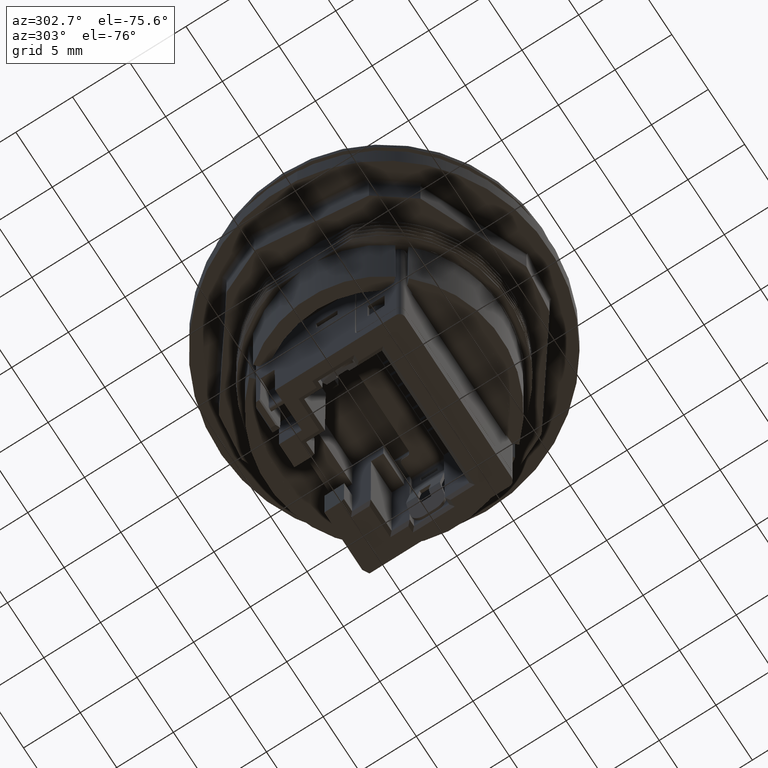
[diagram: clean part render]
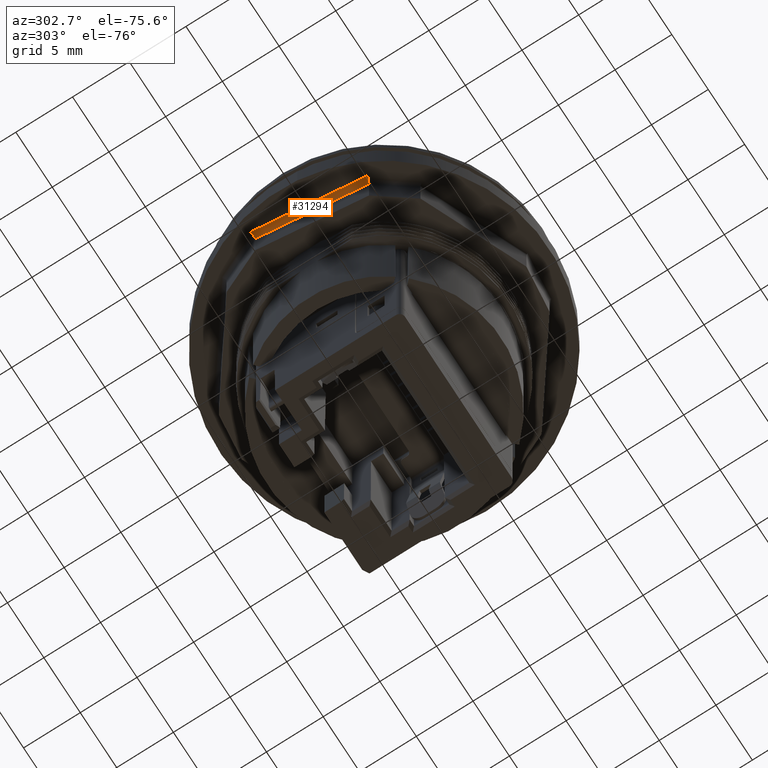
[diagram: same view with one face highlighted and labeled with its STEP entity id]
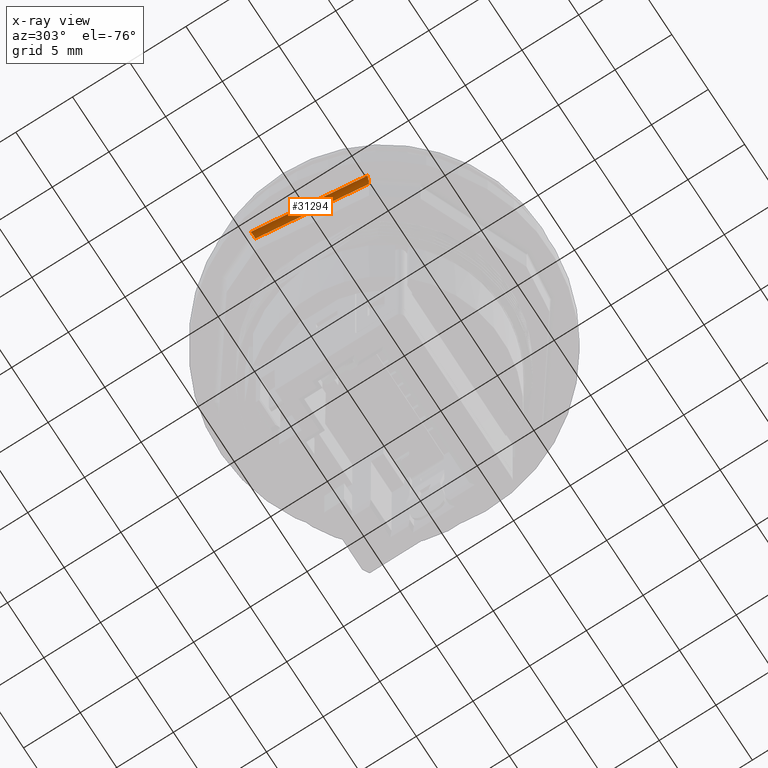
[diagram: x-ray of the same camera — body ghosted, the highlighted face saturated]
A machine part, auxiliary view. The second image highlights one B-rep face of the part: STEP entity #31294.
The next image is the same camera in x-ray: the body ghosted, the highlighted face saturated — about 0% of this face is hidden behind the body in this view.
In plain terms, the highlighted cylindrical surface (edge-blend (fillet) strip) has radius 0.5 mm, axis along (-0.109, 0.994, 0).
Its self-contained STEP definition (entity closure, byte-faithful):
#336=ELLIPSE('',#32900,0.0517638090205041,0.05);
#346=ELLIPSE('',#32920,0.0517638090205041,0.05);
#602=CYLINDRICAL_SURFACE('',#32921,0.05);
#1867=FACE_OUTER_BOUND('',#3441,.T.);
#3441=EDGE_LOOP('',(#19464,#19465,#19466,#19467));
#5092=LINE('',#43972,#8441);
#5093=LINE('',#43973,#8442);
#8441=VECTOR('',#35561,1.);
#8442=VECTOR('',#35562,1.);
#11771=VERTEX_POINT('',#43903);
#11774=VERTEX_POINT('',#43908);
#11793=VERTEX_POINT('',#43966);
#11794=VERTEX_POINT('',#43968);
#14766=EDGE_CURVE('',#11771,#11774,#336,.T.);
#14795=EDGE_CURVE('',#11793,#11794,#346,.T.);
#14797=EDGE_CURVE('',#11793,#11771,#5092,.T.);
#14798=EDGE_CURVE('',#11774,#11794,#5093,.T.);
#19464=ORIENTED_EDGE('',*,*,#14797,.T.);
#19465=ORIENTED_EDGE('',*,*,#14766,.T.);
#19466=ORIENTED_EDGE('',*,*,#14798,.T.);
#19467=ORIENTED_EDGE('',*,*,#14795,.F.);
#31294=ADVANCED_FACE('',(#1867),#602,.F.);
#32900=AXIS2_PLACEMENT_3D('',#43910,#35497,#35498);
#32920=AXIS2_PLACEMENT_3D('',#43969,#35556,#35557);
#32921=AXIS2_PLACEMENT_3D('',#43971,#35559,#35560);
#35497=DIRECTION('center_axis',(0.152009967343776,0.988378960636124,-9.03799265409492E-16));
#35498=DIRECTION('ref_axis',(0.988378960636124,-0.152009967343776,-3.58152027374413E-15));
#35556=DIRECTION('center_axis',(-0.362544986969913,0.93196627214883,-1.1367391717467E-15));
#35557=DIRECTION('ref_axis',(0.931966272148829,0.362544986969913,-3.55358717393619E-15));
#35559=DIRECTION('center_axis',(-0.10898094548055,0.99404383883316,5.39626050256443E-17));
#35560=DIRECTION('ref_axis',(0.702895139235637,0.0770611655694185,0.707106781186545));
#35561=DIRECTION('',(-0.10898094548055,0.99404383883316,5.39626050256443E-17));
#35562=DIRECTION('',(0.10898094548055,-0.99404383883316,-5.39626050256443E-17));
#43903=CARTESIAN_POINT('',(-1.2954036357784,0.345821948794884,0.25));
#43908=CARTESIAN_POINT('',(-1.24424137602015,0.337953333876088,0.2));
#43910=CARTESIAN_POINT('Origin',(-1.2954036357784,0.345821948794884,0.2));
#43966=CARTESIAN_POINT('',(-1.1897059613045,-0.61827431249626,0.25));
#43968=CARTESIAN_POINT('',(-1.14146383717944,-0.599507603029407,0.2));
#43969=CARTESIAN_POINT('Origin',(-1.1897059613045,-0.61827431249626,0.2));
#43971=CARTESIAN_POINT('Origin',(-1.26824918325163,0.0981390523756873,0.2));
#43972=CARTESIAN_POINT('',(-1.26824918325163,0.0981390523756873,0.25));
#43973=CARTESIAN_POINT('',(-1.21854699130997,0.103588099649715,0.2));